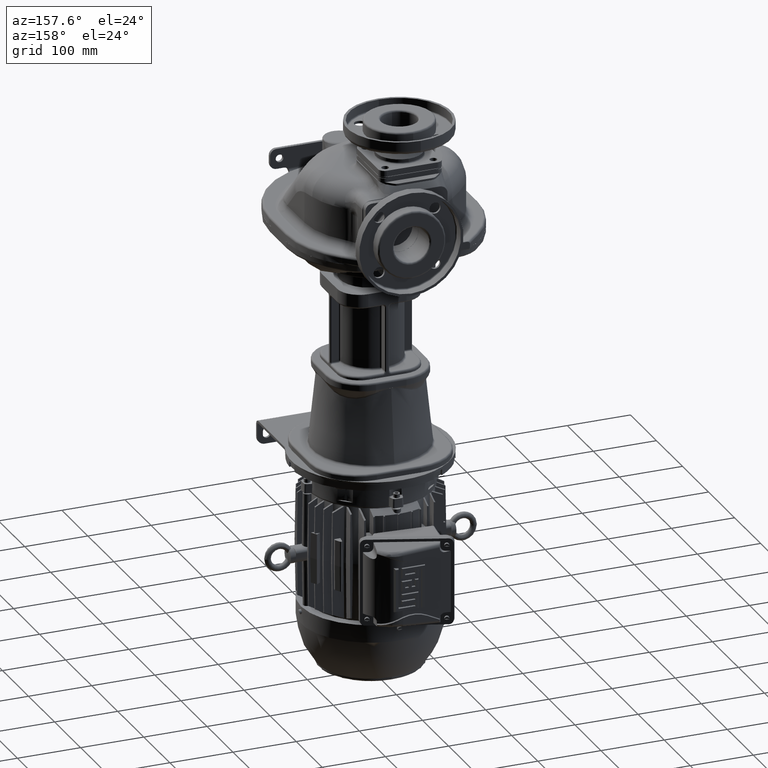
[diagram: clean part render]
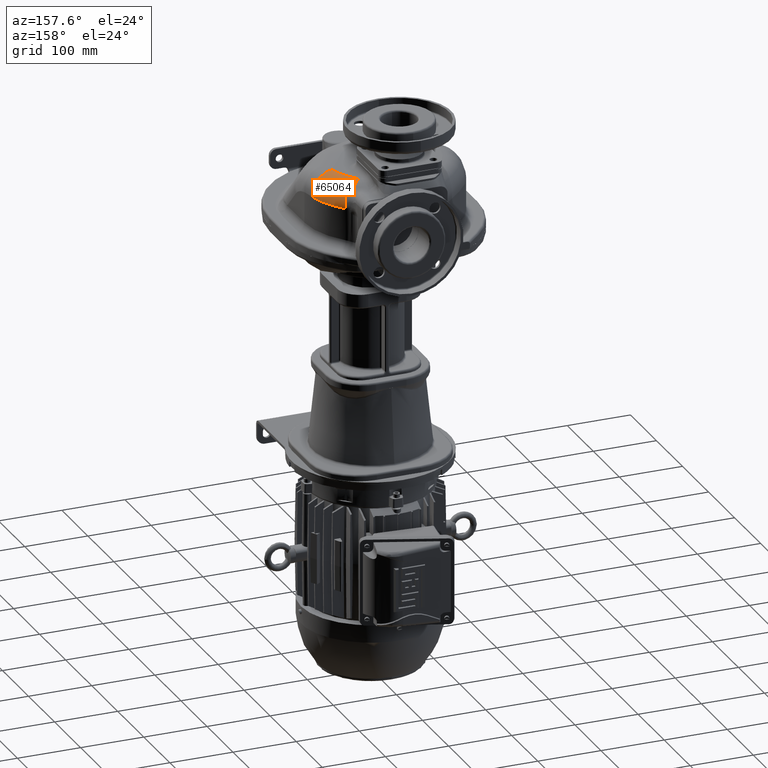
[diagram: same view with one face highlighted and labeled with its STEP entity id]
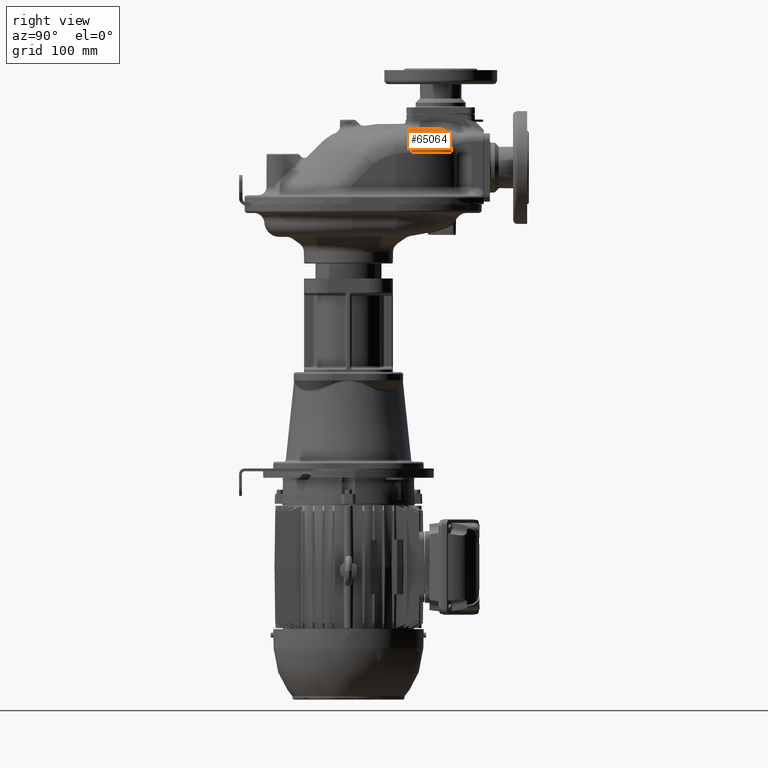
[diagram: same view with one face highlighted and labeled with its STEP entity id]
A machine part, auxiliary view. The second image highlights one B-rep face of the part: STEP entity #65064.
A second angle (right view) of the same face is appended — the face is thin or edge-on in the first view.
In plain terms, the highlighted toroidal blend (fillet) surface has major radius 88 mm and minor (blend) radius 35 mm.
Its self-contained STEP definition (entity closure, byte-faithful):
#51=CARTESIAN_POINT('',(1.E1,6.9E1,1.075E2));
#52=DIRECTION('',(0.E0,0.E0,1.E0));
#53=DIRECTION('',(9.807284414338E-1,1.953758535818E-1,0.E0));
#54=AXIS2_PLACEMENT_3D('',#51,#52,#53);
#2403=CARTESIAN_POINT('',(1.E1,6.9E1,7.25E1));
#2404=DIRECTION('',(0.E0,0.E0,1.E0));
#2405=DIRECTION('',(9.807284414338E-1,1.953758535818E-1,0.E0));
#2406=AXIS2_PLACEMENT_3D('',#2403,#2404,#2405);
#3714=CARTESIAN_POINT('',(1.016932994455E2,1.489011893062E2,8.222495997901E1));
#3715=CARTESIAN_POINT('',(1.016888181825E2,1.488157518168E2,8.243069314892E1));
#3716=CARTESIAN_POINT('',(1.016727398397E2,1.486469708030E2,8.284148912828E1));
#3717=CARTESIAN_POINT('',(1.016274803348E2,1.483998465204E2,8.345562265085E1));
#3718=CARTESIAN_POINT('',(1.015612711362E2,1.481590315023E2,8.406671911193E1));
#3719=CARTESIAN_POINT('',(1.014743440350E2,1.479246797785E2,8.467407546271E1));
#3720=CARTESIAN_POINT('',(1.013669289785E2,1.476970179173E2,8.527695831234E1));
#3721=CARTESIAN_POINT('',(1.012393389291E2,1.474762450415E2,8.587463136172E1));
#3722=CARTESIAN_POINT('',(1.010918383350E2,1.472624027631E2,8.646678102898E1));
#3723=CARTESIAN_POINT('',(1.009245883394E2,1.470554470708E2,8.705339866396E1));
#3724=CARTESIAN_POINT('',(1.007377306119E2,1.468553956252E2,8.763437608228E1));
#3725=CARTESIAN_POINT('',(1.005315355180E2,1.466623928742E2,8.820922862639E1));
#3726=CARTESIAN_POINT('',(1.003062510040E2,1.464766059717E2,8.877752708773E1));
#3727=CARTESIAN_POINT('',(1.000621510856E2,1.462982171041E2,8.933882472953E1));
#3728=CARTESIAN_POINT('',(9.979957368182E1,1.461274018790E2,8.989264189724E1));
#3729=CARTESIAN_POINT('',(9.951873846593E1,1.459643586444E2,9.043867632186E1));
#3730=CARTESIAN_POINT('',(9.921975809899E1,1.458092026772E2,9.097686286723E1));
#3731=CARTESIAN_POINT('',(9.890282695963E1,1.456620571814E2,9.150701347438E1));
#3732=CARTESIAN_POINT('',(9.856827980868E1,1.455231706771E2,9.202866787428E1));
#3733=CARTESIAN_POINT('',(9.821634231890E1,1.453929147424E2,9.254141789032E1));
#3734=CARTESIAN_POINT('',(9.784742261146E1,1.452714740139E2,9.304487383078E1));
#3735=CARTESIAN_POINT('',(9.746186672805E1,1.451590273937E2,9.353875571627E1));
#3736=CARTESIAN_POINT('',(9.705965576549E1,1.450560397039E2,9.402291986760E1));
#3737=CARTESIAN_POINT('',(9.664104792674E1,1.449626096599E2,9.449726953819E1));
#3738=CARTESIAN_POINT('',(9.620614799520E1,1.448789543943E2,9.496174906384E1));
#3739=CARTESIAN_POINT('',(9.575540484299E1,1.448058095736E2,9.541560553590E1));
#3740=CARTESIAN_POINT('',(9.528982074370E1,1.447432213227E2,9.585823111086E1));
#3741=CARTESIAN_POINT('',(9.481015183072E1,1.446916923174E2,9.628896670812E1));
#3742=CARTESIAN_POINT('',(9.431729927583E1,1.446518171740E2,9.670706543842E1));
#3743=CARTESIAN_POINT('',(9.381269405963E1,1.446233563923E2,9.711204701415E1));
#3744=CARTESIAN_POINT('',(9.329741306608E1,1.446070051188E2,9.750315015887E1));
#3745=CARTESIAN_POINT('',(9.277275573734E1,1.446029829787E2,9.787988072522E1));
#3746=CARTESIAN_POINT('',(9.223910397241E1,1.446108234990E2,9.824287036206E1));
#3747=CARTESIAN_POINT('',(9.169647393526E1,1.446312690918E2,9.859219721603E1));
#3748=CARTESIAN_POINT('',(9.114510171525E1,1.446644571359E2,9.892816621070E1));
#3749=CARTESIAN_POINT('',(9.058515679586E1,1.447099876705E2,9.925140900887E1));
#3750=CARTESIAN_POINT('',(9.001639821828E1,1.447687858296E2,9.956200337079E1));
#3751=CARTESIAN_POINT('',(8.943877827950E1,1.448411926853E2,9.986023689142E1));
#3752=CARTESIAN_POINT('',(8.885222557229E1,1.449271444246E2,1.001466053252E2));
#3753=CARTESIAN_POINT('',(8.825666532306E1,1.450268756691E2,1.004214055637E2));
#3754=CARTESIAN_POINT('',(8.765231042778E1,1.451411278334E2,1.006845033997E2));
#3755=CARTESIAN_POINT('',(8.703938557421E1,1.452700703741E2,1.009360699499E2));
#3756=CARTESIAN_POINT('',(8.662513591066E1,1.453660560291E2,1.010961780873E2));
#3757=CARTESIAN_POINT('',(8.641662137657E1,1.454166213765E2,1.011743489356E2));
#3759=CARTESIAN_POINT('',(1.016749899601E2,1.494408271588E2,8.095569211973E1));
#3760=CARTESIAN_POINT('',(1.016821686719E2,1.493791267549E2,8.109747263813E1));
#3761=CARTESIAN_POINT('',(1.016930605832E2,1.492568961083E2,8.138056514189E1));
#3762=CARTESIAN_POINT('',(1.016991147373E2,1.490770165200E2,8.180372321362E1));
#3763=CARTESIAN_POINT('',(1.016963589959E2,1.489594153411E2,8.208473632309E1));
#3764=CARTESIAN_POINT('',(1.016932994455E2,1.489011893062E2,8.222495997901E1));
#3766=CARTESIAN_POINT('',(1.014467783781E2,1.512586574427E2,7.249999999961E1));
#3767=CARTESIAN_POINT('',(1.014467787038E2,1.512586568111E2,7.271198430925E1));
#3768=CARTESIAN_POINT('',(1.014477061717E2,1.512518652331E2,7.313637631763E1));
#3769=CARTESIAN_POINT('',(1.014518450540E2,1.512212542930E2,7.377378384116E1));
#3770=CARTESIAN_POINT('',(1.014587122653E2,1.511700957368E2,7.441251600444E1));
#3771=CARTESIAN_POINT('',(1.014682988678E2,1.510981908411E2,7.505281069381E1));
#3772=CARTESIAN_POINT('',(1.014806181031E2,1.510052656856E2,7.569490074212E1));
#3773=CARTESIAN_POINT('',(1.014956849427E2,1.508909513380E2,7.633923261672E1));
#3774=CARTESIAN_POINT('',(1.015134388775E2,1.507548523194E2,7.698637997111E1));
#3775=CARTESIAN_POINT('',(1.015338512136E2,1.505964529285E2,7.763683440407E1));
#3776=CARTESIAN_POINT('',(1.015568825015E2,1.504151610757E2,7.829104946798E1));
#3777=CARTESIAN_POINT('',(1.015825713743E2,1.502102143616E2,7.894942899604E1));
#3778=CARTESIAN_POINT('',(1.016108253805E2,1.499808356262E2,7.961256603190E1));
#3779=CARTESIAN_POINT('',(1.016415431260E2,1.497262132138E2,8.028082238187E1));
#3780=CARTESIAN_POINT('',(1.016635953527E2,1.495389314297E2,8.073019929751E1));
#3781=CARTESIAN_POINT('',(1.016749899601E2,1.494408271588E2,8.095569211973E1));
#3783=CARTESIAN_POINT('',(9.630410282858E1,8.619307520353E1,7.25E1));
#3784=DIRECTION('',(-1.953758545856E-1,9.807284412338E-1,0.E0));
#3785=DIRECTION('',(0.E0,0.E0,1.E0));
#3786=AXIS2_PLACEMENT_3D('',#3783,#3784,#3785);
#3913=CARTESIAN_POINT('',(8.641662137657E1,1.454166213765E2,1.011743489356E2));
#3937=CARTESIAN_POINT('',(7.222539674442E1,1.312253967444E2,7.25E1));
#3938=DIRECTION('',(7.071067811865E-1,-7.071067811865E-1,0.E0));
#3939=DIRECTION('',(4.054635609162E-1,4.054635609162E-1,8.192671124476E-1));
#3940=AXIS2_PLACEMENT_3D('',#3937,#3938,#3939);
#52276=CARTESIAN_POINT('',(9.630410284618E1,8.619307511520E1,1.075E2));
#52277=VERTEX_POINT('',#52276);
#52282=CARTESIAN_POINT('',(1.306295982718E2,9.303123011403E1,7.25E1));
#52283=VERTEX_POINT('',#52282);
#52341=CARTESIAN_POINT('',(7.222539674442E1,1.312253967444E2,1.075E2));
#52342=VERTEX_POINT('',#52341);
#52369=VERTEX_POINT('',#3913);
#52470=VERTEX_POINT('',#3714);
#52472=CARTESIAN_POINT('',(1.014467783781E2,1.512586574427E2,7.25E1));
#52473=VERTEX_POINT('',#52472);
#52474=VERTEX_POINT('',#3781);
#65046=CARTESIAN_POINT('',(1.E1,6.9E1,7.25E1));
#65047=DIRECTION('',(0.E0,0.E0,-1.E0));
#65048=DIRECTION('',(9.999731432498E-1,-7.328900272561E-3,0.E0));
#65049=AXIS2_PLACEMENT_3D('',#65046,#65047,#65048);
#65050=TOROIDAL_SURFACE('',#65049,8.8E1,3.5E1);
#65052=ORIENTED_EDGE('',*,*,#65051,.F.);
#65054=ORIENTED_EDGE('',*,*,#65053,.F.);
#65056=ORIENTED_EDGE('',*,*,#65055,.F.);
#65057=ORIENTED_EDGE('',*,*,#63488,.F.);
#65058=ORIENTED_EDGE('',*,*,#65031,.F.);
#65059=ORIENTED_EDGE('',*,*,#60194,.T.);
#65061=ORIENTED_EDGE('',*,*,#65060,.F.);
#65062=EDGE_LOOP('',(#65052,#65054,#65056,#65057,#65058,#65059,#65061));
#65063=FACE_OUTER_BOUND('',#65062,.F.);
#55=CIRCLE('',#54,8.8E1);
#2407=CIRCLE('',#2406,1.23E2);
#3758=B_SPLINE_CURVE_WITH_KNOTS('',3,(#3714,#3715,#3716,#3717,#3718,#3719,#3720,
#3721,#3722,#3723,#3724,#3725,#3726,#3727,#3728,#3729,#3730,#3731,#3732,#3733,
#3734,#3735,#3736,#3737,#3738,#3739,#3740,#3741,#3742,#3743,#3744,#3745,#3746,
#3747,#3748,#3749,#3750,#3751,#3752,#3753,#3754,#3755,#3756,#3757),
.UNSPECIFIED.,.F.,.F.,(4,1,1,1,1,1,1,1,1,1,1,1,1,1,1,1,1,1,1,1,1,1,1,1,1,1,1,1,
1,1,1,1,1,1,1,1,1,1,1,1,1,4),(0.E0,2.439024390244E-2,4.878048780488E-2,
7.317073170732E-2,9.756097560976E-2,1.219512195122E-1,1.463414634146E-1,
1.707317073171E-1,1.951219512195E-1,2.195121951220E-1,2.439024390244E-1,
2.682926829268E-1,2.926829268293E-1,3.170731707317E-1,3.414634146341E-1,
3.658536585366E-1,3.902439024390E-1,4.146341463415E-1,4.390243902439E-1,
4.634146341463E-1,4.878048780488E-1,5.121951219512E-1,5.365853658537E-1,
5.609756097561E-1,5.853658536585E-1,6.097560975610E-1,6.341463414634E-1,
6.585365853659E-1,6.829268292683E-1,7.073170731707E-1,7.317073170732E-1,
7.560975609756E-1,7.804878048780E-1,8.048780487805E-1,8.292682926829E-1,
8.536585365854E-1,8.780487804878E-1,9.024390243902E-1,9.268292682927E-1,
9.512195121951E-1,9.756097560976E-1,1.E0),.UNSPECIFIED.);
#3765=B_SPLINE_CURVE_WITH_KNOTS('',3,(#3759,#3760,#3761,#3762,#3763,#3764),
.UNSPECIFIED.,.F.,.F.,(4,1,1,4),(0.E0,3.333333333333E-1,6.666666666667E-1,1.E0),
.UNSPECIFIED.);
#3782=B_SPLINE_CURVE_WITH_KNOTS('',3,(#3766,#3767,#3768,#3769,#3770,#3771,#3772,
#3773,#3774,#3775,#3776,#3777,#3778,#3779,#3780,#3781),.UNSPECIFIED.,.F.,.F.,(4,
1,1,1,1,1,1,1,1,1,1,1,1,4),(0.E0,7.692307692308E-2,1.538461538462E-1,
2.307692307692E-1,3.076923076923E-1,3.846153846154E-1,4.615384615385E-1,
5.384615384615E-1,6.153846153846E-1,6.923076923077E-1,7.692307692308E-1,
8.461538461538E-1,9.230769230769E-1,1.E0),.UNSPECIFIED.);
#3787=CIRCLE('',#3786,3.5E1);
#3941=CIRCLE('',#3940,3.5E1);
#60194=EDGE_CURVE('',#52277,#52342,#55,.T.);
#63488=EDGE_CURVE('',#52283,#52473,#2407,.T.);
#65031=EDGE_CURVE('',#52277,#52283,#3787,.T.);
#65051=EDGE_CURVE('',#52470,#52369,#3758,.T.);
#65053=EDGE_CURVE('',#52474,#52470,#3765,.T.);
#65055=EDGE_CURVE('',#52473,#52474,#3782,.T.);
#65060=EDGE_CURVE('',#52369,#52342,#3941,.T.);
#65064=ADVANCED_FACE('',(#65063),#65050,.T.);